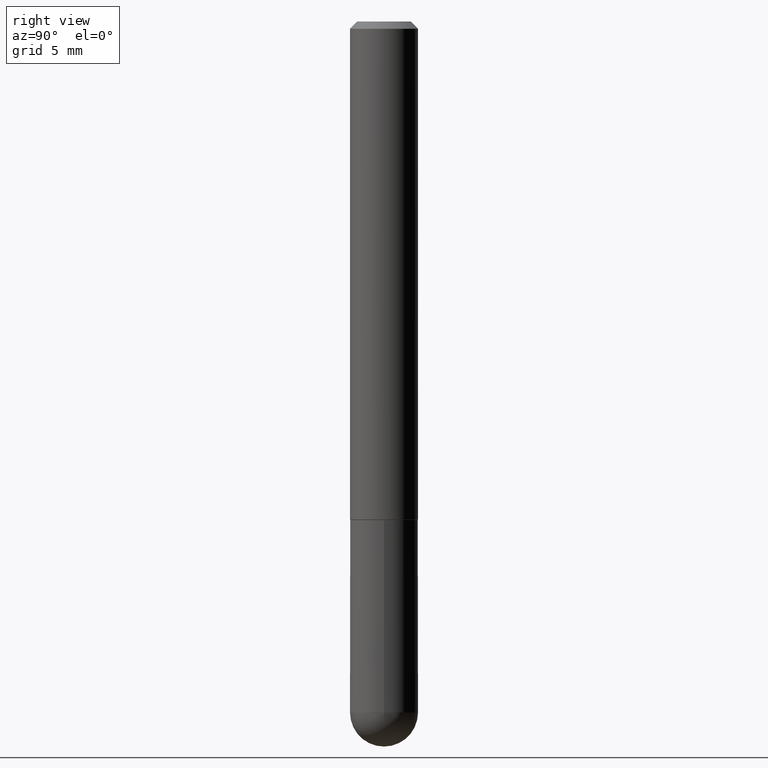
[diagram: clean part render]
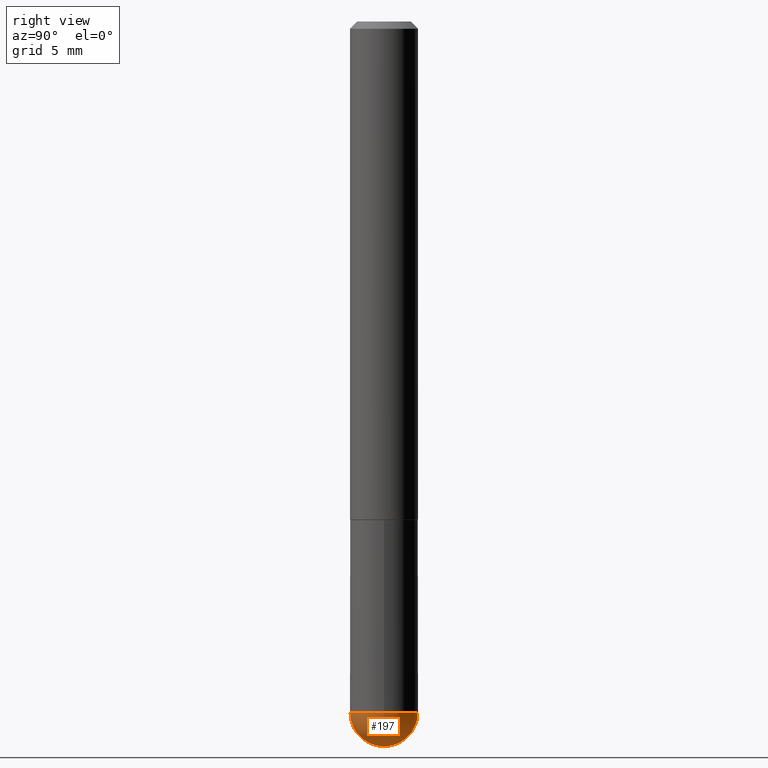
[diagram: same view with one face highlighted and labeled with its STEP entity id]
A machine part, right view. The second image highlights one B-rep face of the part: STEP entity #197.
In plain terms, the highlighted spherical surface has radius 2.3813 mm.
Its self-contained STEP definition (entity closure, byte-faithful):
#10 = CIRCLE ( 'NONE', #105, 0.09375000000000001388 ) ;
#13 = DIRECTION ( 'NONE',  ( -2.445468806185136597E-29, 3.491481338843145583E-15, 1.000000000000000000 ) ) ;
#22 = CARTESIAN_POINT ( 'NONE',  ( -6.661338147750496494E-16, -0.09375000000000702216, -1.906249999999999556 ) ) ;
#25 = VERTEX_POINT ( 'NONE', #22 ) ;
#40 = CARTESIAN_POINT ( 'NONE',  ( 4.563826426436916486E-29, -7.451404513955337857E-15, -2.000000000000000444 ) ) ;
#48 = CIRCLE ( 'NONE', #56, 0.09375000000000026368 ) ;
#56 = AXIS2_PLACEMENT_3D ( 'NONE', #136, #226, #191 ) ;
#75 = CARTESIAN_POINT ( 'NONE',  ( 6.546527510331332580E-16, 0.09374999999999322764, -1.906250000000000222 ) ) ;
#92 = EDGE_LOOP ( 'NONE', ( #142, #205, #109, #341 ) ) ;
#94 = CARTESIAN_POINT ( 'NONE',  ( 0.09375000000000001388, -6.382864322572621901E-15, -1.906250000000000000 ) ) ;
#98 = DIRECTION ( 'NONE',  ( 1.000000000000000000, -6.982962677686261189E-15, 0.000000000000000000 ) ) ;
#105 = AXIS2_PLACEMENT_3D ( 'NONE', #332, #334, #326 ) ;
#109 = ORIENTED_EDGE ( 'NONE', *, *, #366, .F. ) ;
#128 = AXIS2_PLACEMENT_3D ( 'NONE', #310, #349, #270 ) ;
#136 = CARTESIAN_POINT ( 'NONE',  ( 4.330555133876530390E-29, -7.129818670309794948E-15, -1.906250000000000000 ) ) ;
#142 = ORIENTED_EDGE ( 'NONE', *, *, #283, .F. ) ;
#145 = AXIS2_PLACEMENT_3D ( 'NONE', #409, #342, #174 ) ;
#150 = FACE_OUTER_BOUND ( 'NONE', #92, .T. ) ;
#174 = DIRECTION ( 'NONE',  ( 6.982962677686265133E-15, 1.000000000000000000, -2.913971193241872483E-15 ) ) ;
#189 = EDGE_CURVE ( 'NONE', #375, #307, #401, .T. ) ;
#191 = DIRECTION ( 'NONE',  ( -7.105427357601001070E-15, -1.000000000000000000, 0.000000000000000000 ) ) ;
#197 = ADVANCED_FACE ( 'NONE', ( #150 ), #208, .T. ) ;
#205 = ORIENTED_EDGE ( 'NONE', *, *, #189, .T. ) ;
#208 = SPHERICAL_SURFACE ( 'NONE', #145, 0.09375000000000026368 ) ;
#226 = DIRECTION ( 'NONE',  ( -1.000000000000000000, 7.105427357601001070E-15, -4.926315508542082329E-29 ) ) ;
#245 = VERTEX_POINT ( 'NONE', #94 ) ;
#270 = DIRECTION ( 'NONE',  ( 6.982962677686265133E-15, 1.000000000000000000, 0.000000000000000000 ) ) ;
#283 = EDGE_CURVE ( 'NONE', #375, #25, #48, .T. ) ;
#307 = VERTEX_POINT ( 'NONE', #75 ) ;
#310 = CARTESIAN_POINT ( 'NONE',  ( 4.330555133876530390E-29, -7.129818670309794948E-15, -1.906250000000000000 ) ) ;
#326 = DIRECTION ( 'NONE',  ( 1.000000000000000000, -6.982962677686261189E-15, 0.000000000000000000 ) ) ;
#332 = CARTESIAN_POINT ( 'NONE',  ( 4.661674911790416638E-29, -6.655636302169745441E-15, -1.906250000000000000 ) ) ;
#334 = DIRECTION ( 'NONE',  ( -2.445468806185136597E-29, 3.491481338843145583E-15, 1.000000000000000000 ) ) ;
#341 = ORIENTED_EDGE ( 'NONE', *, *, #385, .F. ) ;
#342 = DIRECTION ( 'NONE',  ( -1.000000000000000000, 6.982962677686265133E-15, -4.883557194083112901E-29 ) ) ;
#346 = CIRCLE ( 'NONE', #353, 0.09375000000000001388 ) ;
#349 = DIRECTION ( 'NONE',  ( 1.000000000000000000, -6.982962677686265922E-15, 4.883557194083112340E-29 ) ) ;
#353 = AXIS2_PLACEMENT_3D ( 'NONE', #387, #13, #98 ) ;
#366 = EDGE_CURVE ( 'NONE', #245, #307, #10, .T. ) ;
#375 = VERTEX_POINT ( 'NONE', #40 ) ;
#385 = EDGE_CURVE ( 'NONE', #25, #245, #346, .T. ) ;
#387 = CARTESIAN_POINT ( 'NONE',  ( 4.661674911790416638E-29, -6.655636302169745441E-15, -1.906250000000000000 ) ) ;
#401 = CIRCLE ( 'NONE', #128, 0.09375000000000026368 ) ;
#409 = CARTESIAN_POINT ( 'NONE',  ( 4.330555133876530390E-29, -7.129818670309794948E-15, -1.906250000000000000 ) ) ;